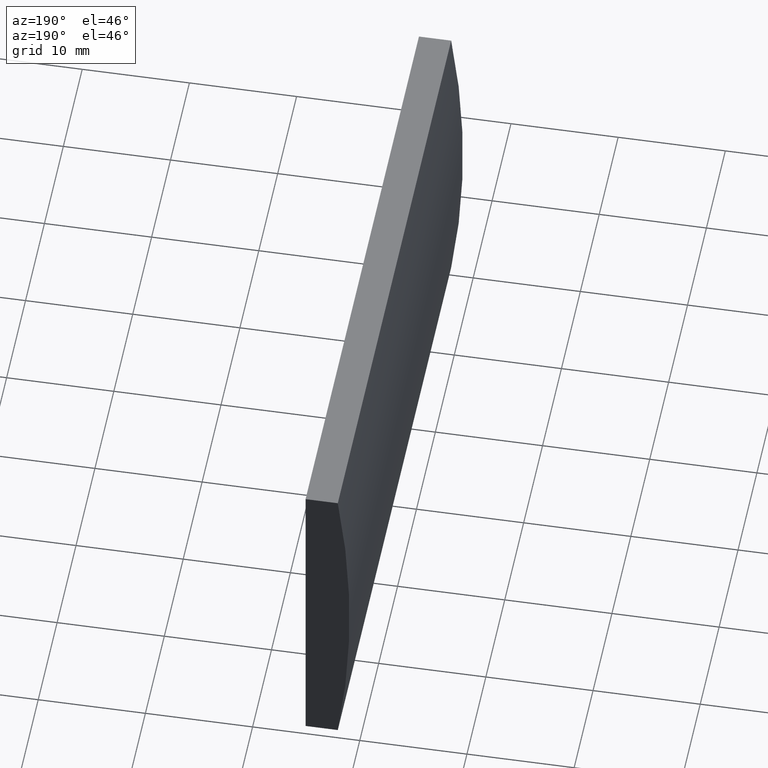
[diagram: clean part render]
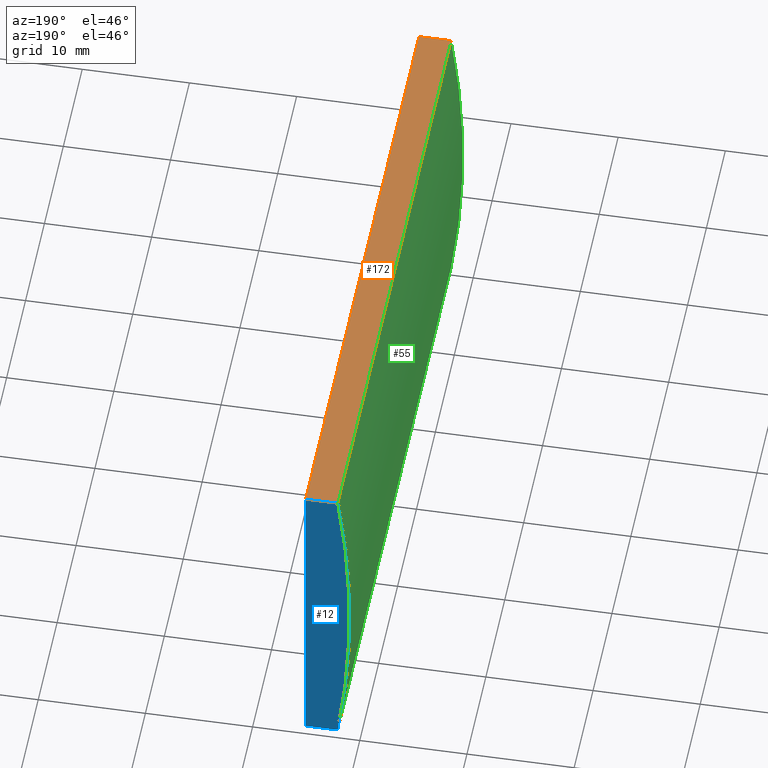
[diagram: same view with three faces highlighted in distinct colors, each labeled with its STEP entity id]
A machine part, auxiliary view with three faces highlighted in distinct colors.
Their STEP definitions:

[orange] entity #172 — the highlighted planar face has unit normal (0, 0, -1).
#5 = DIRECTION ( 'NONE',  ( -1.000000000000000000, 0.0000000000000000000, -0.0000000000000000000 ) ) ;
#7 = CARTESIAN_POINT ( 'NONE',  ( -97.95100271046932500, 60.00000000000000000, 15.00000000000000000 ) ) ;
#13 = LINE ( 'NONE', #113, #22 ) ;
#18 = CARTESIAN_POINT ( 'NONE',  ( -94.94479566514874600, 60.00000000000000000, 15.00000000000000000 ) ) ;
#22 = VECTOR ( 'NONE', #130, 1000.000000000000000 ) ;
#24 = FACE_OUTER_BOUND ( 'NONE', #193, .T. ) ;
#27 = ORIENTED_EDGE ( 'NONE', *, *, #129, .F. ) ;
#28 = DIRECTION ( 'NONE',  ( 0.0000000000000000000, 0.0000000000000000000, -1.000000000000000000 ) ) ;
#34 = CARTESIAN_POINT ( 'NONE',  ( -97.95100271046932500, 0.0000000000000000000, 15.00000000000000000 ) ) ;
#36 = ORIENTED_EDGE ( 'NONE', *, *, #174, .F. ) ;
#41 = CARTESIAN_POINT ( 'NONE',  ( -94.94479566514874600, 0.0000000000000000000, 15.00000000000000000 ) ) ;
#46 = CARTESIAN_POINT ( 'NONE',  ( -97.95100271046932500, 0.0000000000000000000, 15.00000000000000000 ) ) ;
#69 = EDGE_CURVE ( 'NONE', #191, #176, #87, .T. ) ;
#74 = VERTEX_POINT ( 'NONE', #190 ) ;
#87 = LINE ( 'NONE', #34, #157 ) ;
#94 = VERTEX_POINT ( 'NONE', #18 ) ;
#98 = CARTESIAN_POINT ( 'NONE',  ( -97.95100271046932500, 60.00000000000000000, 15.00000000000000000 ) ) ;
#108 = DIRECTION ( 'NONE',  ( -0.0000000000000000000, -1.000000000000000000, -0.0000000000000000000 ) ) ;
#110 = AXIS2_PLACEMENT_3D ( 'NONE', #98, #28, #5 ) ;
#113 = CARTESIAN_POINT ( 'NONE',  ( -97.95100271046932500, 60.00000000000000000, 15.00000000000000000 ) ) ;
#121 = DIRECTION ( 'NONE',  ( 1.000000000000000000, 0.0000000000000000000, 0.0000000000000000000 ) ) ;
#125 = PLANE ( 'NONE',  #110 ) ;
#128 = CARTESIAN_POINT ( 'NONE',  ( -94.94479566514874600, 60.00000000000000000, 15.00000000000000000 ) ) ;
#129 = EDGE_CURVE ( 'NONE', #74, #94, #13, .T. ) ;
#130 = DIRECTION ( 'NONE',  ( 1.000000000000000000, 0.0000000000000000000, 0.0000000000000000000 ) ) ;
#146 = VECTOR ( 'NONE', #108, 1000.000000000000000 ) ;
#157 = VECTOR ( 'NONE', #121, 1000.000000000000000 ) ;
#159 = ORIENTED_EDGE ( 'NONE', *, *, #69, .T. ) ;
#169 = LINE ( 'NONE', #7, #146 ) ;
#172 = ADVANCED_FACE ( 'NONE', ( #24 ), #125, .F. ) ;
#174 = EDGE_CURVE ( 'NONE', #94, #176, #177, .T. ) ;
#176 = VERTEX_POINT ( 'NONE', #41 ) ;
#177 = LINE ( 'NONE', #128, #204 ) ;
#182 = DIRECTION ( 'NONE',  ( -0.0000000000000000000, -1.000000000000000000, -0.0000000000000000000 ) ) ;
#183 = EDGE_CURVE ( 'NONE', #74, #191, #169, .T. ) ;
#184 = ORIENTED_EDGE ( 'NONE', *, *, #183, .T. ) ;
#190 = CARTESIAN_POINT ( 'NONE',  ( -97.95100271046932500, 60.00000000000000000, 15.00000000000000000 ) ) ;
#191 = VERTEX_POINT ( 'NONE', #46 ) ;
#193 = EDGE_LOOP ( 'NONE', ( #159, #36, #27, #184 ) ) ;
#204 = VECTOR ( 'NONE', #182, 1000.000000000000000 ) ;

[blue] entity #12 — the highlighted planar face has unit normal (0, 1, 0).
#11 = CARTESIAN_POINT ( 'NONE',  ( -94.94479566514876000, 60.00000000000000000, -15.00000000000000400 ) ) ;
#12 = ADVANCED_FACE ( 'NONE', ( #202 ), #132, .T. ) ;
#13 = LINE ( 'NONE', #113, #22 ) ;
#17 = DIRECTION ( 'NONE',  ( 0.0000000000000000000, 1.000000000000000000, 0.0000000000000000000 ) ) ;
#18 = CARTESIAN_POINT ( 'NONE',  ( -94.94479566514874600, 60.00000000000000000, 15.00000000000000000 ) ) ;
#19 = CARTESIAN_POINT ( 'NONE',  ( 4.355204334851265500, 60.00000000000000000, 4.286263797015675000E-017 ) ) ;
#22 = VECTOR ( 'NONE', #130, 1000.000000000000000 ) ;
#29 = DIRECTION ( 'NONE',  ( 0.0000000000000000000, 0.0000000000000000000, 1.000000000000000000 ) ) ;
#37 = LINE ( 'NONE', #136, #48 ) ;
#48 = VECTOR ( 'NONE', #185, 1000.000000000000000 ) ;
#56 = AXIS2_PLACEMENT_3D ( 'NONE', #165, #17, #195 ) ;
#58 = ORIENTED_EDGE ( 'NONE', *, *, #107, .T. ) ;
#59 = VERTEX_POINT ( 'NONE', #173 ) ;
#67 = EDGE_LOOP ( 'NONE', ( #71, #143, #58, #187 ) ) ;
#71 = ORIENTED_EDGE ( 'NONE', *, *, #116, .T. ) ;
#74 = VERTEX_POINT ( 'NONE', #190 ) ;
#94 = VERTEX_POINT ( 'NONE', #18 ) ;
#99 = CIRCLE ( 'NONE', #201, 103.4000000000000200 ) ;
#102 = LINE ( 'NONE', #149, #126 ) ;
#103 = VERTEX_POINT ( 'NONE', #11 ) ;
#107 = EDGE_CURVE ( 'NONE', #94, #103, #37, .T. ) ;
#113 = CARTESIAN_POINT ( 'NONE',  ( -97.95100271046932500, 60.00000000000000000, 15.00000000000000000 ) ) ;
#116 = EDGE_CURVE ( 'NONE', #59, #74, #99, .T. ) ;
#126 = VECTOR ( 'NONE', #141, 1000.000000000000000 ) ;
#129 = EDGE_CURVE ( 'NONE', #74, #94, #13, .T. ) ;
#130 = DIRECTION ( 'NONE',  ( 1.000000000000000000, 0.0000000000000000000, 0.0000000000000000000 ) ) ;
#132 = PLANE ( 'NONE',  #56 ) ;
#136 = CARTESIAN_POINT ( 'NONE',  ( -94.94479566514876000, 60.00000000000000000, -15.00000000000000400 ) ) ;
#139 = DIRECTION ( 'NONE',  ( 0.0000000000000000000, 1.000000000000000000, 0.0000000000000000000 ) ) ;
#141 = DIRECTION ( 'NONE',  ( -1.000000000000000000, -0.0000000000000000000, 1.154094478407304000E-015 ) ) ;
#143 = ORIENTED_EDGE ( 'NONE', *, *, #129, .T. ) ;
#149 = CARTESIAN_POINT ( 'NONE',  ( -97.95100271046932500, 60.00000000000000000, -15.00000000000000000 ) ) ;
#165 = CARTESIAN_POINT ( 'NONE',  ( 4.355204334851265500, 60.00000000000000000, 4.286263797015675000E-017 ) ) ;
#173 = CARTESIAN_POINT ( 'NONE',  ( -97.95100271046932500, 60.00000000000000000, -15.00000000000000000 ) ) ;
#178 = EDGE_CURVE ( 'NONE', #103, #59, #102, .T. ) ;
#185 = DIRECTION ( 'NONE',  ( -4.625929269271485900E-016, -0.0000000000000000000, -1.000000000000000000 ) ) ;
#187 = ORIENTED_EDGE ( 'NONE', *, *, #178, .T. ) ;
#190 = CARTESIAN_POINT ( 'NONE',  ( -97.95100271046932500, 60.00000000000000000, 15.00000000000000000 ) ) ;
#195 = DIRECTION ( 'NONE',  ( 0.0000000000000000000, -0.0000000000000000000, 1.000000000000000000 ) ) ;
#201 = AXIS2_PLACEMENT_3D ( 'NONE', #19, #139, #29 ) ;
#202 = FACE_OUTER_BOUND ( 'NONE', #67, .T. ) ;

[green] entity #55 — the highlighted cylindrical surface (partial cylindrical patch) has radius 103.4 mm, axis along (-0, -1, -0).
#3 = VERTEX_POINT ( 'NONE', #147 ) ;
#7 = CARTESIAN_POINT ( 'NONE',  ( -97.95100271046932500, 60.00000000000000000, 15.00000000000000000 ) ) ;
#19 = CARTESIAN_POINT ( 'NONE',  ( 4.355204334851265500, 60.00000000000000000, 4.286263797015675000E-017 ) ) ;
#29 = DIRECTION ( 'NONE',  ( 0.0000000000000000000, 0.0000000000000000000, 1.000000000000000000 ) ) ;
#30 = DIRECTION ( 'NONE',  ( -0.0000000000000000000, -1.000000000000000000, -0.0000000000000000000 ) ) ;
#32 = DIRECTION ( 'NONE',  ( 0.0000000000000000000, 0.0000000000000000000, 1.000000000000000000 ) ) ;
#38 = DIRECTION ( 'NONE',  ( 0.0000000000000000000, 1.000000000000000000, 0.0000000000000000000 ) ) ;
#46 = CARTESIAN_POINT ( 'NONE',  ( -97.95100271046932500, 0.0000000000000000000, 15.00000000000000000 ) ) ;
#54 = ORIENTED_EDGE ( 'NONE', *, *, #183, .F. ) ;
#55 = ADVANCED_FACE ( 'NONE', ( #57 ), #60, .T. ) ;
#57 = FACE_OUTER_BOUND ( 'NONE', #120, .T. ) ;
#59 = VERTEX_POINT ( 'NONE', #173 ) ;
#60 = CYLINDRICAL_SURFACE ( 'NONE', #151, 103.4000000000000200 ) ;
#64 = DIRECTION ( 'NONE',  ( -0.0000000000000000000, -1.000000000000000000, -0.0000000000000000000 ) ) ;
#73 = DIRECTION ( 'NONE',  ( 0.0000000000000000000, 0.0000000000000000000, -1.000000000000000000 ) ) ;
#74 = VERTEX_POINT ( 'NONE', #190 ) ;
#80 = CIRCLE ( 'NONE', #179, 103.4000000000000200 ) ;
#90 = EDGE_CURVE ( 'NONE', #3, #191, #80, .T. ) ;
#95 = LINE ( 'NONE', #153, #194 ) ;
#99 = CIRCLE ( 'NONE', #201, 103.4000000000000200 ) ;
#104 = ORIENTED_EDGE ( 'NONE', *, *, #90, .T. ) ;
#108 = DIRECTION ( 'NONE',  ( -0.0000000000000000000, -1.000000000000000000, -0.0000000000000000000 ) ) ;
#109 = ORIENTED_EDGE ( 'NONE', *, *, #137, .T. ) ;
#116 = EDGE_CURVE ( 'NONE', #59, #74, #99, .T. ) ;
#120 = EDGE_LOOP ( 'NONE', ( #104, #54, #168, #109 ) ) ;
#124 = CARTESIAN_POINT ( 'NONE',  ( 4.355204334851265500, 0.0000000000000000000, 4.286263797015675000E-017 ) ) ;
#137 = EDGE_CURVE ( 'NONE', #59, #3, #95, .T. ) ;
#139 = DIRECTION ( 'NONE',  ( 0.0000000000000000000, 1.000000000000000000, 0.0000000000000000000 ) ) ;
#146 = VECTOR ( 'NONE', #108, 1000.000000000000000 ) ;
#147 = CARTESIAN_POINT ( 'NONE',  ( -97.95100271046932500, 0.0000000000000000000, -15.00000000000000000 ) ) ;
#151 = AXIS2_PLACEMENT_3D ( 'NONE', #166, #64, #73 ) ;
#153 = CARTESIAN_POINT ( 'NONE',  ( -97.95100271046932500, 60.00000000000000000, -15.00000000000000000 ) ) ;
#166 = CARTESIAN_POINT ( 'NONE',  ( 4.355204334851265500, 60.00000000000000000, 4.286263797015675000E-017 ) ) ;
#168 = ORIENTED_EDGE ( 'NONE', *, *, #116, .F. ) ;
#169 = LINE ( 'NONE', #7, #146 ) ;
#173 = CARTESIAN_POINT ( 'NONE',  ( -97.95100271046932500, 60.00000000000000000, -15.00000000000000000 ) ) ;
#179 = AXIS2_PLACEMENT_3D ( 'NONE', #124, #38, #32 ) ;
#183 = EDGE_CURVE ( 'NONE', #74, #191, #169, .T. ) ;
#190 = CARTESIAN_POINT ( 'NONE',  ( -97.95100271046932500, 60.00000000000000000, 15.00000000000000000 ) ) ;
#191 = VERTEX_POINT ( 'NONE', #46 ) ;
#194 = VECTOR ( 'NONE', #30, 1000.000000000000000 ) ;
#201 = AXIS2_PLACEMENT_3D ( 'NONE', #19, #139, #29 ) ;